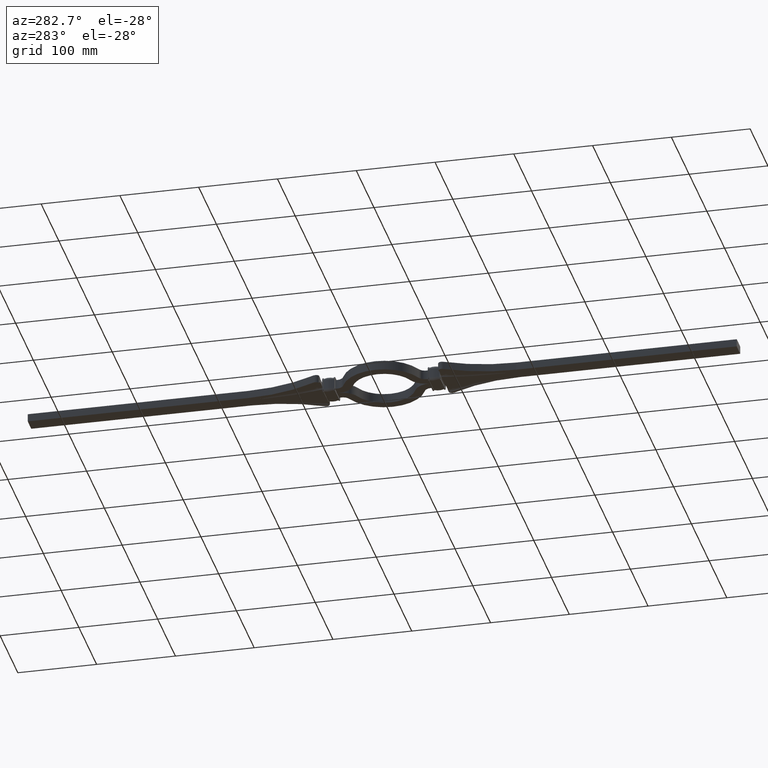
[diagram: clean part render]
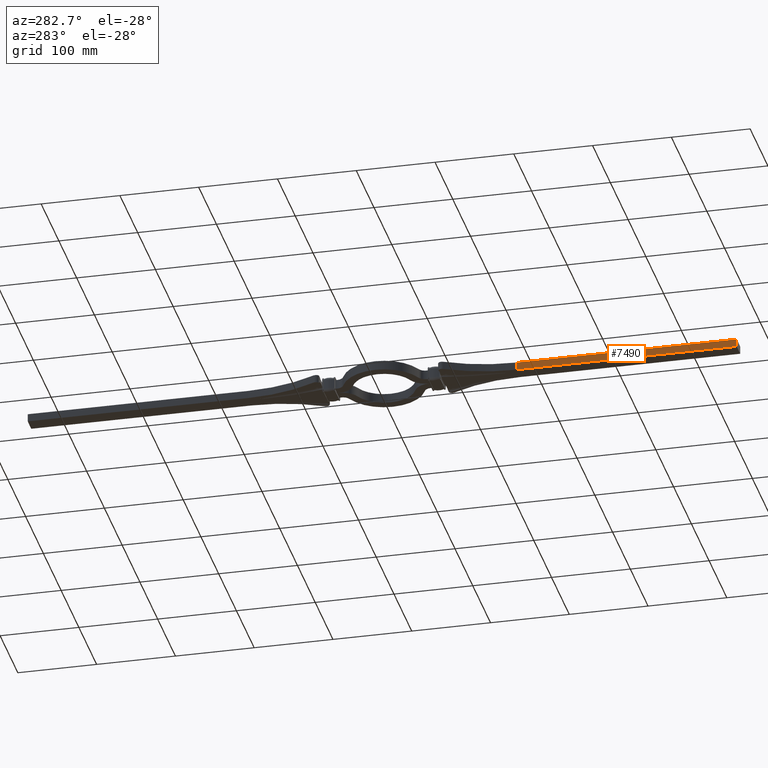
[diagram: same view with one face highlighted and labeled with its STEP entity id]
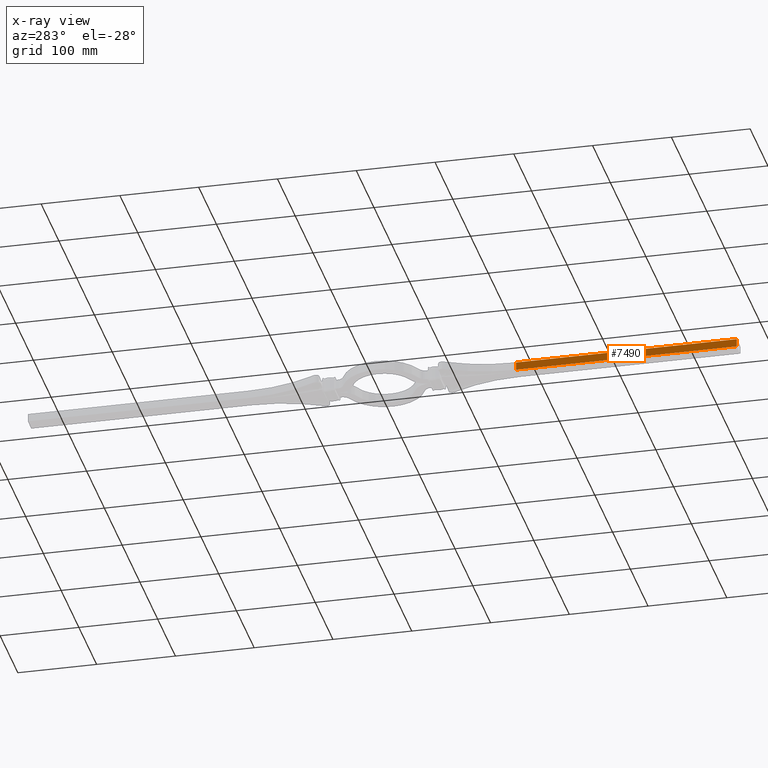
[diagram: x-ray of the same camera — body ghosted, the highlighted face saturated]
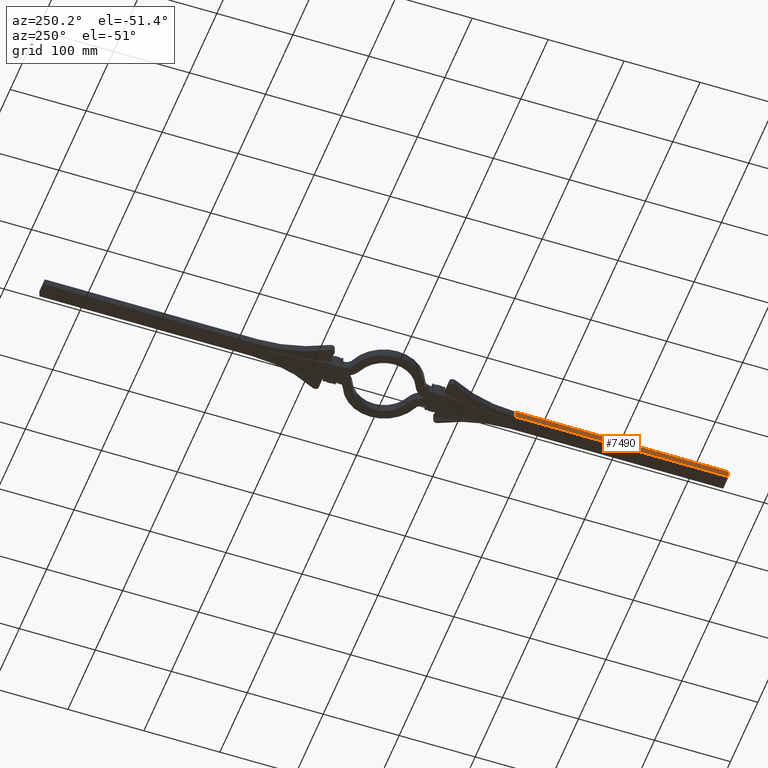
[diagram: same view with one face highlighted and labeled with its STEP entity id]
A machine part, auxiliary view. The second image highlights one B-rep face of the part: STEP entity #7490.
The next image is the same camera in x-ray: the body ghosted, the highlighted face saturated — about 0% of this face is hidden behind the body in this view.
A second angle (auxiliary view) of the same face is appended — the face is thin or edge-on in the first view.
In plain terms, the highlighted planar face has unit normal (1, 0, 0).
Its self-contained STEP definition (entity closure, byte-faithful):
#128 = LINE ( 'NONE', #19103, #2792 ) ;
#245 = EDGE_LOOP ( 'NONE', ( #22600, #12779, #17779, #7279 ) ) ;
#1540 = VECTOR ( 'NONE', #4654, 1000.000000000000000 ) ;
#1768 = EDGE_CURVE ( 'NONE', #2531, #20726, #1826, .T. ) ;
#1826 = LINE ( 'NONE', #16200, #1540 ) ;
#2531 = VERTEX_POINT ( 'NONE', #20714 ) ;
#2627 = AXIS2_PLACEMENT_3D ( 'NONE', #8521, #15925, #23487 ) ;
#2792 = VECTOR ( 'NONE', #15977, 1000.000000000000000 ) ;
#3097 = VERTEX_POINT ( 'NONE', #19137 ) ;
#4654 = DIRECTION ( 'NONE',  ( -0.000000000000000000, 0.000000000000000000, -1.000000000000000000 ) ) ;
#5856 = EDGE_CURVE ( 'NONE', #7450, #2531, #128, .T. ) ;
#6626 = CARTESIAN_POINT ( 'NONE',  ( -9.999999999999998224, -450.0000000000000000, -5.000000000000000000 ) ) ;
#7279 = ORIENTED_EDGE ( 'NONE', *, *, #1768, .T. ) ;
#7450 = VERTEX_POINT ( 'NONE', #22999 ) ;
#7490 = ADVANCED_FACE ( 'NONE', ( #8970 ), #23402, .F. ) ;
#8521 = CARTESIAN_POINT ( 'NONE',  ( -9.999999999999998224, -450.0000000000000000, 5.000000000000000000 ) ) ;
#8970 = FACE_OUTER_BOUND ( 'NONE', #245, .T. ) ;
#10234 = VECTOR ( 'NONE', #11212, 1000.000000000000000 ) ;
#10971 = VECTOR ( 'NONE', #23170, 1000.000000000000000 ) ;
#11212 = DIRECTION ( 'NONE',  ( -0.000000000000000000, 0.000000000000000000, -1.000000000000000000 ) ) ;
#12779 = ORIENTED_EDGE ( 'NONE', *, *, #17325, .F. ) ;
#13017 = CARTESIAN_POINT ( 'NONE',  ( -9.999999999999998224, -450.0000000000000000, 5.000000000000000000 ) ) ;
#15925 = DIRECTION ( 'NONE',  ( 1.000000000000000000, 1.362997016838919825E-16, 0.000000000000000000 ) ) ;
#15977 = DIRECTION ( 'NONE',  ( -1.362997016838919825E-16, 1.000000000000000000, 0.000000000000000000 ) ) ;
#16200 = CARTESIAN_POINT ( 'NONE',  ( -10.00000000000006395, -170.0000000000000284, 5.000000000000000000 ) ) ;
#17325 = EDGE_CURVE ( 'NONE', #7450, #3097, #23168, .T. ) ;
#17779 = ORIENTED_EDGE ( 'NONE', *, *, #5856, .T. ) ;
#18909 = LINE ( 'NONE', #6626, #10971 ) ;
#19103 = CARTESIAN_POINT ( 'NONE',  ( -9.999999999999998224, -450.0000000000000000, 5.000000000000000000 ) ) ;
#19137 = CARTESIAN_POINT ( 'NONE',  ( -9.999999999999998224, -450.0000000000000000, -5.000000000000000000 ) ) ;
#19409 = CARTESIAN_POINT ( 'NONE',  ( -10.00000000000006395, -170.0000000000000284, -5.000000000000000000 ) ) ;
#20714 = CARTESIAN_POINT ( 'NONE',  ( -10.00000000000006395, -170.0000000000000284, 5.000000000000000000 ) ) ;
#20726 = VERTEX_POINT ( 'NONE', #19409 ) ;
#22141 = EDGE_CURVE ( 'NONE', #3097, #20726, #18909, .T. ) ;
#22600 = ORIENTED_EDGE ( 'NONE', *, *, #22141, .F. ) ;
#22999 = CARTESIAN_POINT ( 'NONE',  ( -9.999999999999998224, -450.0000000000000000, 5.000000000000000000 ) ) ;
#23168 = LINE ( 'NONE', #13017, #10234 ) ;
#23170 = DIRECTION ( 'NONE',  ( -1.362997016838919825E-16, 1.000000000000000000, 0.000000000000000000 ) ) ;
#23402 = PLANE ( 'NONE',  #2627 ) ;
#23487 = DIRECTION ( 'NONE',  ( 1.362997016838919825E-16, -1.000000000000000000, 0.000000000000000000 ) ) ;